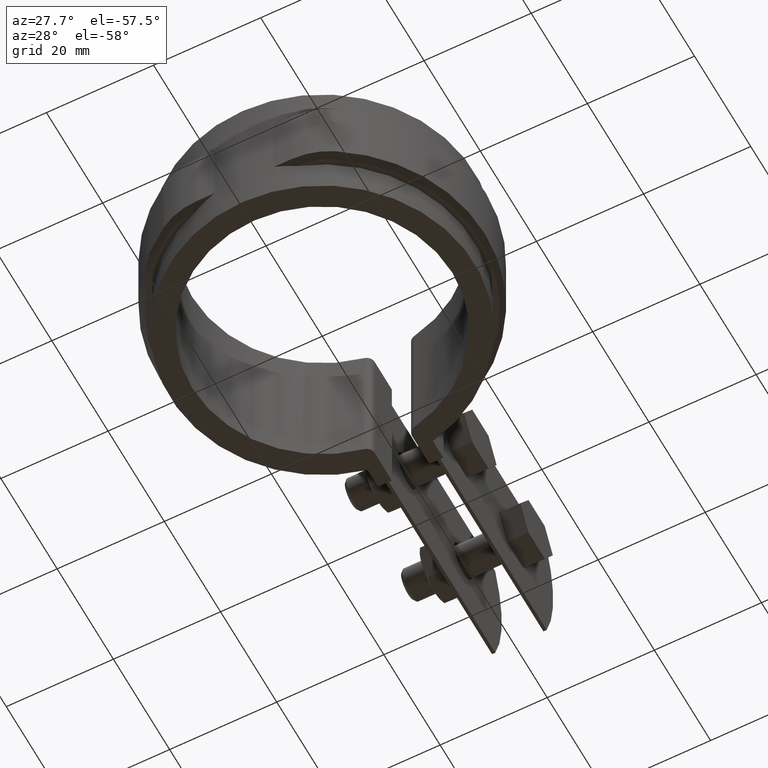
[diagram: clean part render]
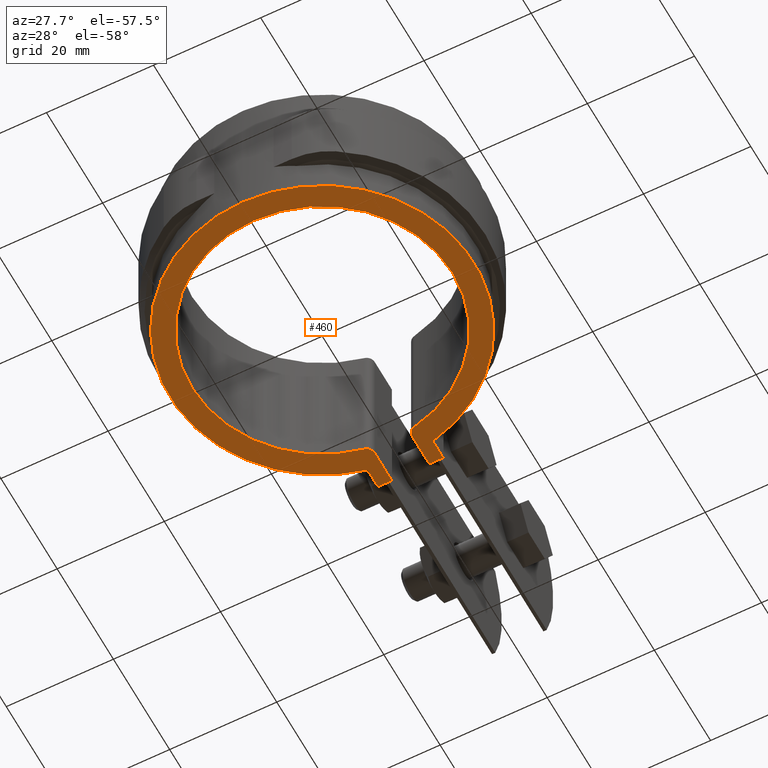
[diagram: same view with one face highlighted and labeled with its STEP entity id]
A machine part, auxiliary view. The second image highlights one B-rep face of the part: STEP entity #460.
In plain terms, the highlighted planar face has unit normal (0, 0, -1).
Its self-contained STEP definition (entity closure, byte-faithful):
#460 = ADVANCED_FACE( '', ( #836 ), #837, .T. );
#836 = FACE_OUTER_BOUND( '', #1926, .T. );
#837 = PLANE( '', #1927 );
#1926 = EDGE_LOOP( '', ( #4580, #4581, #4582, #4583, #4584, #4585, #4586, #4587, #4588, #4589 ) );
#1927 = AXIS2_PLACEMENT_3D( '', #4590, #4591, #4592 );
#4580 = ORIENTED_EDGE( '', *, *, #5598, .F. );
#4581 = ORIENTED_EDGE( '', *, *, #5343, .T. );
#4582 = ORIENTED_EDGE( '', *, *, #5599, .F. );
#4583 = ORIENTED_EDGE( '', *, *, #5526, .T. );
#4584 = ORIENTED_EDGE( '', *, *, #5528, .T. );
#4585 = ORIENTED_EDGE( '', *, *, #5535, .T. );
#4586 = ORIENTED_EDGE( '', *, *, #5340, .F. );
#4587 = ORIENTED_EDGE( '', *, *, #5517, .T. );
#4588 = ORIENTED_EDGE( '', *, *, #5597, .F. );
#4589 = ORIENTED_EDGE( '', *, *, #5593, .F. );
#4590 = CARTESIAN_POINT( '', ( -6.50000000000000, 27.0294284068310, -26.5000000000000 ) );
#4591 = DIRECTION( '', ( 0.000000000000000, 0.000000000000000, -1.00000000000000 ) );
#4592 = DIRECTION( '', ( 1.00000000000000, -6.04196909756771E-017, 0.000000000000000 ) );
#5340 = EDGE_CURVE( '', #6037, #6039, #6040, .T. );
#5343 = EDGE_CURVE( '', #6045, #6042, #6046, .T. );
#5517 = EDGE_CURVE( '', #6037, #6333, #6335, .T. );
#5526 = EDGE_CURVE( '', #6350, #6348, #6351, .T. );
#5528 = EDGE_CURVE( '', #6348, #6353, #6354, .F. );
#5535 = EDGE_CURVE( '', #6353, #6039, #6366, .T. );
#5593 = EDGE_CURVE( '', #6456, #6458, #6459, .T. );
#5597 = EDGE_CURVE( '', #6458, #6333, #6463, .T. );
#5598 = EDGE_CURVE( '', #6045, #6456, #6464, .T. );
#5599 = EDGE_CURVE( '', #6350, #6042, #6465, .T. );
#6037 = VERTEX_POINT( '', #7970 );
#6039 = VERTEX_POINT( '', #7973 );
#6040 = LINE( '', #7974, #7975 );
#6042 = VERTEX_POINT( '', #7978 );
#6045 = VERTEX_POINT( '', #7982 );
#6046 = LINE( '', #7983, #7984 );
#6333 = VERTEX_POINT( '', #9734 );
#6335 = LINE( '', #9737, #9738 );
#6348 = VERTEX_POINT( '', #9754 );
#6350 = VERTEX_POINT( '', #9757 );
#6351 = CIRCLE( '', #9758, 1.50000000000000 );
#6353 = VERTEX_POINT( '', #9761 );
#6354 = CIRCLE( '', #9762, 24.3000000000000 );
#6366 = CIRCLE( '', #9780, 1.50000000000000 );
#6456 = VERTEX_POINT( '', #9929 );
#6458 = VERTEX_POINT( '', #9932 );
#6459 = CIRCLE( '', #9933, 28.3950000000000 );
#6463 = LINE( '', #9940, #9941 );
#6464 = LINE( '', #9942, #9943 );
#6465 = LINE( '', #9944, #9945 );
#7970 = CARTESIAN_POINT( '', ( 3.50000000000001, 31.4045271556056, -26.5000000000000 ) );
#7973 = CARTESIAN_POINT( '', ( 3.50000000000000, 25.3108672312902, -26.5000000000000 ) );
#7974 = CARTESIAN_POINT( '', ( 3.50000000000000, 31.8400000000000, -26.5000000000000 ) );
#7975 = VECTOR( '', #10553, 1000.00000000000 );
#7978 = CARTESIAN_POINT( '', ( -3.49999999999999, 31.4045271556056, -26.5000000000000 ) );
#7982 = CARTESIAN_POINT( '', ( -6.10000000000002, 31.4045271556056, -26.5000000000000 ) );
#7983 = CARTESIAN_POINT( '', ( -6.50000000000000, 31.4045271556056, -26.5000000000000 ) );
#7984 = VECTOR( '', #10556, 1000.00000000000 );
#9734 = CARTESIAN_POINT( '', ( 6.09999999999998, 31.4045271556056, -26.5000000000000 ) );
#9737 = CARTESIAN_POINT( '', ( -6.50000000000000, 31.4045271556056, -26.5000000000000 ) );
#9738 = VECTOR( '', #10687, 1000.00000000000 );
#9754 = CARTESIAN_POINT( '', ( -4.70930232558139, 23.8393051829594, -26.5000000000000 ) );
#9757 = CARTESIAN_POINT( '', ( -3.49999999999999, 25.3108672312902, -26.5000000000000 ) );
#9758 = AXIS2_PLACEMENT_3D( '', #10704, #10705, #10706 );
#9761 = CARTESIAN_POINT( '', ( 4.70930232558140, 23.8393051829594, -26.5000000000000 ) );
#9762 = AXIS2_PLACEMENT_3D( '', #10708, #10709, #10710 );
#9780 = AXIS2_PLACEMENT_3D( '', #10720, #10721, #10722 );
#9929 = CARTESIAN_POINT( '', ( -6.10000000000002, 27.7320396833698, -26.5000000000000 ) );
#9932 = CARTESIAN_POINT( '', ( 6.09999999999998, 27.7320396833699, -26.5000000000000 ) );
#9933 = AXIS2_PLACEMENT_3D( '', #10817, #10818, #10819 );
#9940 = CARTESIAN_POINT( '', ( 6.09999999999998, 27.7320396833698, -26.5000000000000 ) );
#9941 = VECTOR( '', #10823, 1000.00000000000 );
#9942 = CARTESIAN_POINT( '', ( -6.10000000000002, 31.8400000000000, -26.5000000000000 ) );
#9943 = VECTOR( '', #10824, 1000.00000000000 );
#9944 = CARTESIAN_POINT( '', ( -3.49999999999999, 24.0415686884196, -26.5000000000000 ) );
#9945 = VECTOR( '', #10825, 1000.00000000000 );
#10553 = DIRECTION( '', ( -6.07153216591882E-017, -1.00000000000000, 0.000000000000000 ) );
#10556 = DIRECTION( '', ( 1.00000000000000, 0.000000000000000, 0.000000000000000 ) );
#10687 = DIRECTION( '', ( 1.00000000000000, 0.000000000000000, 0.000000000000000 ) );
#10704 = CARTESIAN_POINT( '', ( -4.99999999999999, 25.3108672312902, -26.5000000000000 ) );
#10705 = DIRECTION( '', ( 0.000000000000000, 0.000000000000000, -1.00000000000000 ) );
#10706 = DIRECTION( '', ( -1.00000000000000, 0.000000000000000, 0.000000000000000 ) );
#10708 = CARTESIAN_POINT( '', ( 0.000000000000000, 0.000000000000000, -26.5000000000000 ) );
#10709 = DIRECTION( '', ( 0.000000000000000, 0.000000000000000, -1.00000000000000 ) );
#10710 = DIRECTION( '', ( -1.00000000000000, 0.000000000000000, 0.000000000000000 ) );
#10720 = CARTESIAN_POINT( '', ( 5.00000000000000, 25.3108672312902, -26.5000000000000 ) );
#10721 = DIRECTION( '', ( 0.000000000000000, 0.000000000000000, -1.00000000000000 ) );
#10722 = DIRECTION( '', ( -1.00000000000000, 0.000000000000000, 0.000000000000000 ) );
#10817 = CARTESIAN_POINT( '', ( 0.000000000000000, 0.000000000000000, -26.5000000000000 ) );
#10818 = DIRECTION( '', ( 0.000000000000000, 0.000000000000000, 1.00000000000000 ) );
#10819 = DIRECTION( '', ( 1.00000000000000, -6.07153216591882E-017, 0.000000000000000 ) );
#10823 = DIRECTION( '', ( 6.07153216591882E-017, 1.00000000000000, 0.000000000000000 ) );
#10824 = DIRECTION( '', ( -6.07153216591882E-017, -1.00000000000000, 0.000000000000000 ) );
#10825 = DIRECTION( '', ( 6.07153216591882E-017, 1.00000000000000, 0.000000000000000 ) );